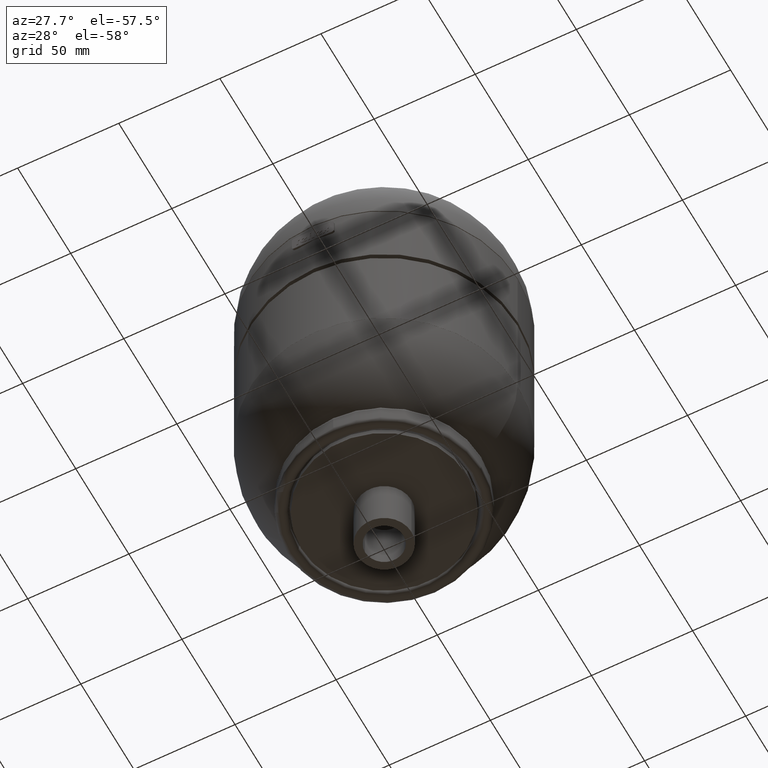
[diagram: clean part render]
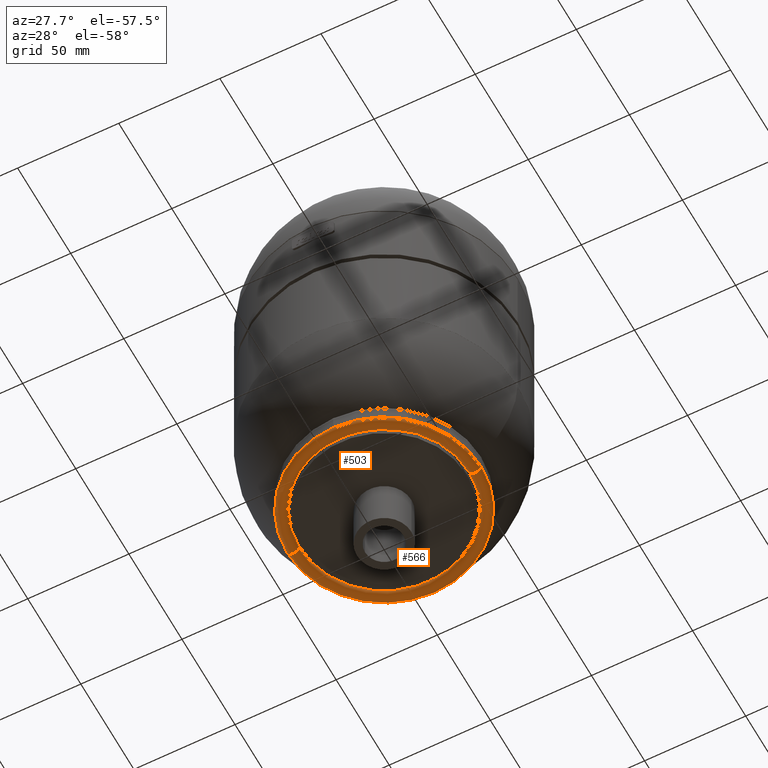
[diagram: same view with one multi-face feature highlighted, each face labeled with its STEP entity id]
A machine part, auxiliary view. The highlighted faces form ONE feature: a constant-radius fillet chain: 2 tangent blend faces with common blend radius 3 mm. The faces share edges in the B-rep.
Their STEP definitions:
[1] entity #566 (Torus):
#131=CARTESIAN_POINT('',(0.0,48.0,27.999999999999993));
#132=VERTEX_POINT('',#131);
#141=CARTESIAN_POINT('',(-48.000000000000007,0.0,28.0));
#142=VERTEX_POINT('',#141);
#143=CARTESIAN_POINT('',(0.0,0.0,28.0));
#144=DIRECTION('',(0.0,0.0,-1.0));
#145=DIRECTION('',(0.0,1.0,0.0));
#146=AXIS2_PLACEMENT_3D('',#143,#144,#145);
#147=CIRCLE('',#146,48.000000000000007);
#148=EDGE_CURVE('',#142,#132,#147,.T.);
#408=CARTESIAN_POINT('',(-42.000000000000014,0.0,28.0));
#409=VERTEX_POINT('',#408);
#419=CARTESIAN_POINT('',(0.0,42.0,27.999999999999996));
#420=VERTEX_POINT('',#419);
#421=CARTESIAN_POINT('',(0.0,0.0,28.0));
#422=DIRECTION('',(0.0,0.0,-1.0));
#423=DIRECTION('',(0.0,1.0,0.0));
#424=AXIS2_PLACEMENT_3D('',#421,#422,#423);
#425=CIRCLE('',#424,42.000000000000014);
#426=EDGE_CURVE('',#409,#420,#425,.T.);
#428=CARTESIAN_POINT('',(42.000000000000014,-5.143347E-015,28.0));
#429=VERTEX_POINT('',#428);
#430=CARTESIAN_POINT('',(0.0,0.0,28.0));
#431=DIRECTION('',(0.0,0.0,-1.0));
#432=DIRECTION('',(0.0,1.0,0.0));
#433=AXIS2_PLACEMENT_3D('',#430,#431,#432);
#434=CIRCLE('',#433,42.000000000000014);
#435=EDGE_CURVE('',#420,#429,#434,.T.);
#470=CARTESIAN_POINT('',(-45.000000000000007,0.0,28.0));
#471=DIRECTION('',(0.0,1.0,0.0));
#472=DIRECTION('',(-1.0,0.0,0.0));
#473=AXIS2_PLACEMENT_3D('',#470,#471,#472);
#474=CIRCLE('',#473,3.000000000000000);
#475=EDGE_CURVE('',#409,#142,#474,.T.);
#484=CARTESIAN_POINT('',(48.000000000000007,-5.878110E-015,28.0));
#485=VERTEX_POINT('',#484);
#486=CARTESIAN_POINT('',(45.000000000000007,-5.510729E-015,28.0));
#487=DIRECTION('',(0.0,-1.0,0.0));
#488=DIRECTION('',(1.0,0.0,0.0));
#489=AXIS2_PLACEMENT_3D('',#486,#487,#488);
#490=CIRCLE('',#489,3.000000000000000);
#491=EDGE_CURVE('',#429,#485,#490,.T.);
#547=CARTESIAN_POINT('',(0.0,0.0,28.0));
#548=DIRECTION('',(0.0,-1.045403E-016,-1.0));
#549=DIRECTION('',(-1.0,0.0,0.0));
#550=AXIS2_PLACEMENT_3D('',#547,#548,#549);
#551=TOROIDAL_SURFACE('',#550,45.000000000000007,3.000000000000000);
#552=ORIENTED_EDGE('',*,*,#475,.T.);
#553=ORIENTED_EDGE('',*,*,#148,.T.);
#554=CARTESIAN_POINT('',(0.0,0.0,28.0));
#555=DIRECTION('',(0.0,0.0,-1.0));
#556=DIRECTION('',(0.0,1.0,0.0));
#557=AXIS2_PLACEMENT_3D('',#554,#555,#556);
#558=CIRCLE('',#557,48.000000000000007);
#559=EDGE_CURVE('',#132,#485,#558,.T.);
#560=ORIENTED_EDGE('',*,*,#559,.T.);
#561=ORIENTED_EDGE('',*,*,#491,.F.);
#562=ORIENTED_EDGE('',*,*,#435,.F.);
#563=ORIENTED_EDGE('',*,*,#426,.F.);
#564=EDGE_LOOP('',(#552,#553,#560,#561,#562,#563));
#565=FACE_OUTER_BOUND('',#564,.T.);
#566=ADVANCED_FACE('',(#565),#551,.T.);
[2] entity #503 (Torus):
#141=CARTESIAN_POINT('',(-48.000000000000007,0.0,28.0));
#142=VERTEX_POINT('',#141);
#150=CARTESIAN_POINT('',(-5.878110E-015,-48.000000000000007,28.0));
#151=VERTEX_POINT('',#150);
#152=CARTESIAN_POINT('',(0.0,0.0,28.0));
#153=DIRECTION('',(0.0,0.0,-1.0));
#154=DIRECTION('',(0.0,1.0,0.0));
#155=AXIS2_PLACEMENT_3D('',#152,#153,#154);
#156=CIRCLE('',#155,48.000000000000007);
#157=EDGE_CURVE('',#151,#142,#156,.T.);
#408=CARTESIAN_POINT('',(-42.000000000000014,0.0,28.0));
#409=VERTEX_POINT('',#408);
#428=CARTESIAN_POINT('',(42.000000000000014,-5.143347E-015,28.0));
#429=VERTEX_POINT('',#428);
#465=CARTESIAN_POINT('',(0.0,0.0,28.0));
#466=DIRECTION('',(0.0,-1.045403E-016,-1.0));
#467=DIRECTION('',(-1.0,0.0,0.0));
#468=AXIS2_PLACEMENT_3D('',#465,#466,#467);
#469=TOROIDAL_SURFACE('',#468,45.000000000000007,3.000000000000000);
#470=CARTESIAN_POINT('',(-45.000000000000007,0.0,28.0));
#471=DIRECTION('',(0.0,1.0,0.0));
#472=DIRECTION('',(-1.0,0.0,0.0));
#473=AXIS2_PLACEMENT_3D('',#470,#471,#472);
#474=CIRCLE('',#473,3.000000000000000);
#475=EDGE_CURVE('',#409,#142,#474,.T.);
#476=ORIENTED_EDGE('',*,*,#475,.F.);
#477=CARTESIAN_POINT('',(0.0,0.0,28.0));
#478=DIRECTION('',(0.0,0.0,-1.0));
#479=DIRECTION('',(0.0,1.0,0.0));
#480=AXIS2_PLACEMENT_3D('',#477,#478,#479);
#481=CIRCLE('',#480,42.000000000000014);
#482=EDGE_CURVE('',#429,#409,#481,.T.);
#483=ORIENTED_EDGE('',*,*,#482,.F.);
#484=CARTESIAN_POINT('',(48.000000000000007,-5.878110E-015,28.0));
#485=VERTEX_POINT('',#484);
#486=CARTESIAN_POINT('',(45.000000000000007,-5.510729E-015,28.0));
#487=DIRECTION('',(0.0,-1.0,0.0));
#488=DIRECTION('',(1.0,0.0,0.0));
#489=AXIS2_PLACEMENT_3D('',#486,#487,#488);
#490=CIRCLE('',#489,3.000000000000000);
#491=EDGE_CURVE('',#429,#485,#490,.T.);
#492=ORIENTED_EDGE('',*,*,#491,.T.);
#493=CARTESIAN_POINT('',(0.0,0.0,28.0));
#494=DIRECTION('',(0.0,0.0,-1.0));
#495=DIRECTION('',(0.0,1.0,0.0));
#496=AXIS2_PLACEMENT_3D('',#493,#494,#495);
#497=CIRCLE('',#496,48.000000000000007);
#498=EDGE_CURVE('',#485,#151,#497,.T.);
#499=ORIENTED_EDGE('',*,*,#498,.T.);
#500=ORIENTED_EDGE('',*,*,#157,.T.);
#501=EDGE_LOOP('',(#476,#483,#492,#499,#500));
#502=FACE_OUTER_BOUND('',#501,.T.);
#503=ADVANCED_FACE('',(#502),#469,.T.);